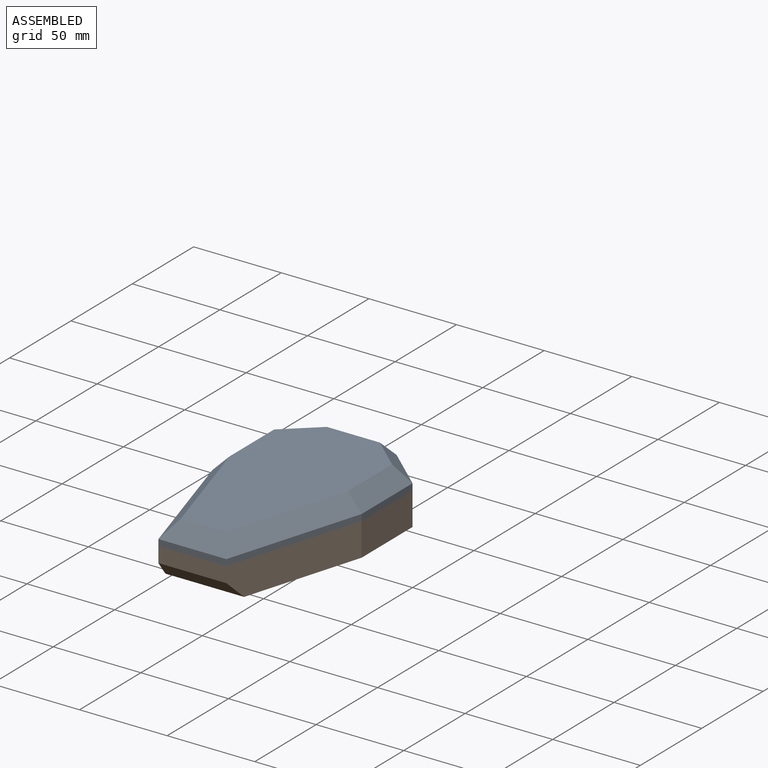
[diagram: assembled view]
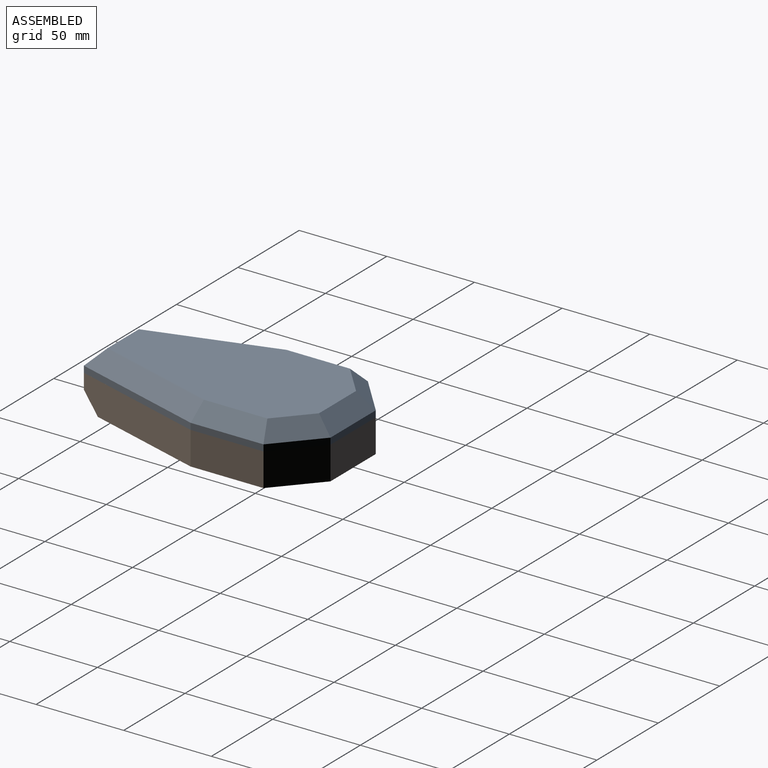
[diagram: assembled view, second angle]
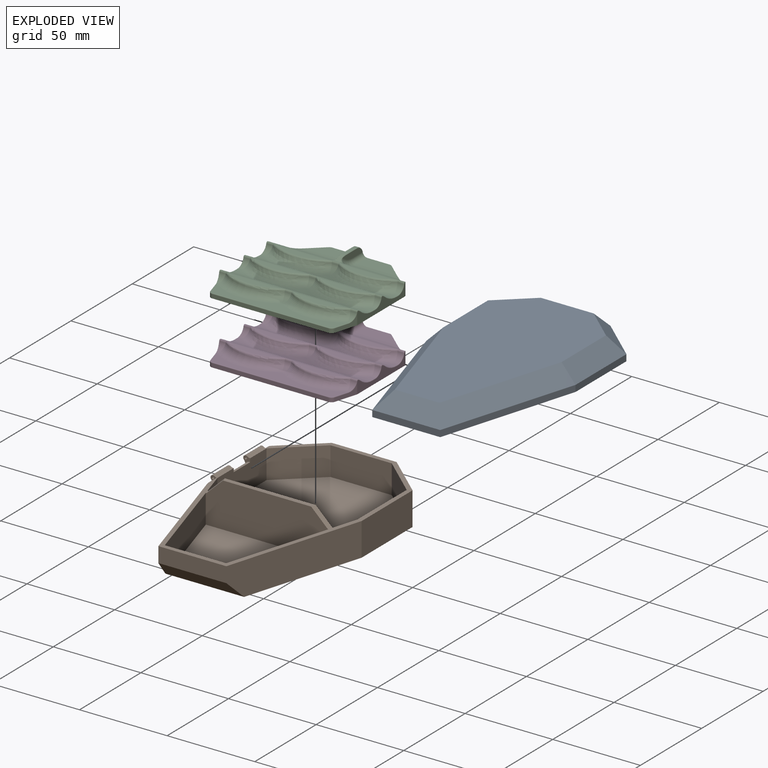
[diagram: exploded view]
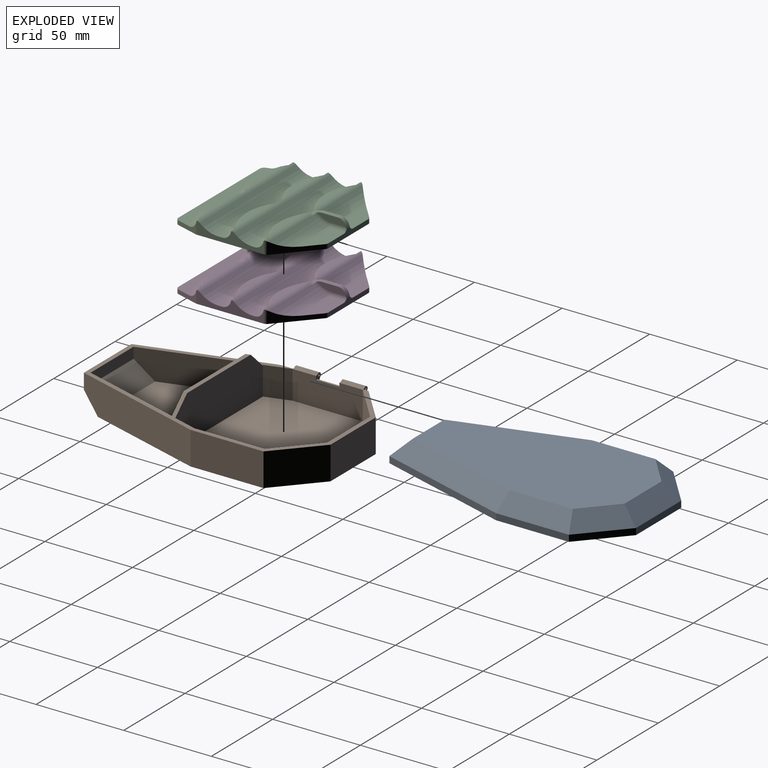
[diagram: exploded view, second angle]
ASSEMBLY  parts=4 mates=3
PART A: 45 faces, bbox 89.1x142.7x17.2 mm
  f0: plane 0.12x0mm, normal (0,1,0), area 0mm2, adj f8,f42
  f1: plane 0.12x0mm, normal (0,-1,0), area 0mm2, adj f8,f42
  f2: cylinder r=1.42mm len=13.33mm, axis (0,-1,0), area 61.4mm2, adj f4,f40,f41,f42
  f3: cylinder r=0.64mm len=13.33mm, axis (0,-1,0), area 53.2mm2, adj f40,f41
  f4: cylinder r=5.08mm len=13.33mm, axis (0,1,0), area 26.1mm2, adj f2,f5,f40,f41
  f5: plane 40x1.11mm, normal (1,0,0), area 43.4mm2, adj f4,f16,f22,f27,f40,f41,f43,f44
  f6: plane 140.08x81.78mm, normal (0,0,-1), area 825.5mm2, adj f7,f9,f10,f11,f12,f13,f14,f16
  f7: plane 24.08x21.4mm, normal (-0.66,0.75,0), area 115.7mm2, adj f6,f8,f14,f35,f44
  f8: plane 41.51x0.35mm, normal (-1,0,0), area 12.9mm2, adj f0,f1,f7,f9,f37,f42,f43,f44
  f9: plane 79.74x25.73mm, normal (-0.96,-0.29,0), area 289.2mm2, adj f6,f8,f10,f39,f43
  f10: plane 38.78x3.65mm, normal (0,-1,0), area 141.5mm2, adj f6,f9,f11,f38
  f11: plane 77.17x23.15mm, normal (0.96,-0.29,0), area 294.1mm2, adj f6,f10,f12,f36
  f12: plane 41.51x3.65mm, normal (1,0,0), area 151.5mm2, adj f6,f11,f13,f34
  f13: plane 24.07x21.4mm, normal (0.66,0.75,0), area 117.6mm2, adj f6,f12,f14,f32
  f14: plane 36.93x3.65mm, normal (0,1,0), area 134.8mm2, adj f6,f7,f13,f33
  f15: plane 122.3x67.3mm, normal (0,0,1), area 6472mm2, adj f32,f33,f34,f35,f36,f37,f38,f39
  f16: plane 22.64x20.14mm, normal (0.66,-0.75,0), area 33.4mm2, adj f5,f6,f17,f25,f44
  f17: plane 35x1.11mm, normal (0,-1,0), area 38.9mm2, adj f6,f16,f18,f24
  f18: plane 22.5x20mm, normal (-0.66,-0.75,0), area 33.4mm2, adj f6,f17,f19,f26
  f19: plane 40x1.11mm, normal (-1,0,0), area 44.4mm2, adj f6,f18,f20,f28
  f20: plane 75x22.5mm, normal (-0.96,0.29,0), area 86.9mm2, adj f6,f19,f21,f30
  f21: plane 35x1.11mm, normal (0,1,0), area 38.9mm2, adj f6,f20,f22,f31
  f22: plane 75.35x22.85mm, normal (0.96,0.29,0), area 86.9mm2, adj f5,f6,f21,f29,f43
  f23: plane 117.22x62.22mm, normal (0,0,-1), area 5673.4mm2, adj f24,f25,f26,f27,f28,f29,f30,f31
  f24: plane 35x8.89mm, normal (0,-0.71,-0.71), area 397.5mm2, adj f17,f23,f25,f26
  f25: plane 25.88x23.99mm, normal (0.47,-0.53,-0.71), area 332.1mm2, adj f16,f23,f24,f27
  f26: plane 25.88x23.99mm, normal (-0.47,-0.53,-0.71), area 332.1mm2, adj f18,f23,f24,f28
  f27: plane 40x8.89mm, normal (0.71,0,-0.71), area 469.6mm2, adj f5,f23,f25,f29
  f28: plane 40x8.89mm, normal (-0.71,0,-0.71), area 469.6mm2, adj f19,f23,f26,f30
  f29: plane 76.3x29.11mm, normal (0.68,0.2,-0.71), area 934.7mm2, adj f22,f23,f27,f31
  f30: plane 76.3x29.11mm, normal (-0.68,0.2,-0.71), area 934.7mm2, adj f20,f23,f28,f31
  f31: plane 35x8.89mm, normal (0,0.71,-0.71), area 356.9mm2, adj f21,f23,f29,f30
  f32: plane 27.45x25.39mm, normal (0.47,0.53,0.71), area 358.6mm2, adj f13,f15,f33,f34
  f33: plane 36.93x8.89mm, normal (0,0.71,0.71), area 421.8mm2, adj f14,f15,f32,f35
  f34: plane 41.51x8.89mm, normal (0.71,0,0.71), area 488.6mm2, adj f12,f15,f32,f36
  f35: plane 27.45x25.39mm, normal (-0.47,0.53,0.71), area 358.6mm2, adj f7,f15,f33,f37
  f36: plane 78.47x29.76mm, normal (0.68,-0.2,0.71), area 963.1mm2, adj f11,f15,f34,f38
  f37: plane 41.51x8.89mm, normal (-0.71,0,0.71), area 488.6mm2, adj f8,f15,f35,f39
  f38: plane 38.78x8.89mm, normal (0,-0.71,0.71), area 404.4mm2, adj f10,f15,f36,f39
  f39: plane 78.47x29.76mm, normal (-0.68,-0.2,0.71), area 963.1mm2, adj f9,f15,f37,f38
  f40: plane 5.49x4.09mm, normal (0,1,0), area 7.4mm2, adj f2,f3,f4,f5,f42,f44
  f41: plane 5.48x4.09mm, normal (0,-1,0), area 7.4mm2, adj f2,f3,f4,f5,f42,f43
  f42: cylinder r=5.08mm len=13.33mm, axis (0,-1,0), area 45.6mm2, adj f0,f1,f2,f8,f40,f41
  f43: bspline ~27.18x3.3mm, area 92mm2, adj f5,f6,f8,f9,f22,f41
  f44: bspline ~19.15x3.3mm, area 72.6mm2, adj f5,f6,f7,f8,f16,f40
PART B: 49 faces, bbox 86.5x140.1x27.9 mm
  f0: plane 58.42x17.53mm, normal (-0.96,0.29,0), area 943.3mm2, adj f22,f25,f31,f45,f47
  f1: plane 16.35x14.04mm, normal (0.96,0.29,0), area 239.7mm2, adj f8,f24,f31,f46
  f2: plane 5.48x3.85mm, normal (0,-1,0), area 6.5mm2, adj f3,f4,f5,f29,f32,f35,f36,f39
  f3: plane 41.51x14.93mm, normal (-1,0,0), area 599.5mm2, adj f2,f9,f10,f11,f26,f27,f28,f29
  f4: cylinder r=1.42mm len=13.33mm, axis (0,-1,0), area 54.6mm2, adj f2,f27,f29,f36
  f5: cylinder r=0.64mm len=13.33mm, axis (0,-1,0), area 53.2mm2, adj f2,f27
  f6: cylinder r=1.42mm len=13.33mm, axis (0,-1,0), area 54.6mm2, adj f9,f26,f28,f37
  f7: cylinder r=0.64mm len=13.33mm, axis (0,-1,0), area 53.2mm2, adj f9,f26
  f8: plane 40x16.35mm, normal (1,0,0), area 626.6mm2, adj f1,f17,f26,f27,f30,f31,f46
  f9: plane 5.48x3.85mm, normal (0,1,0), area 6.5mm2, adj f3,f6,f7,f28,f33,f34,f37,f38
  f10: plane 24.07x21.4mm, normal (-0.66,0.75,0), area 604.4mm2, adj f3,f16,f31,f33,f34,f38,f44
  f11: plane 77.17x23.15mm, normal (-0.96,-0.29,0), area 1457.3mm2, adj f3,f12,f31,f32,f35,f39,f44,f48
  f12: plane 38.78x8.73mm, normal (0,-1,0), area 338.5mm2, adj f11,f13,f31,f48
  f13: plane 77.17x23.15mm, normal (0.96,-0.29,0), area 1468mm2, adj f12,f14,f31,f44,f48
  f14: plane 41.51x18.89mm, normal (1,0,0), area 784.2mm2, adj f13,f15,f31,f44
  f15: plane 24.07x21.4mm, normal (0.66,0.75,0), area 608.5mm2, adj f14,f16,f31,f44
  f16: plane 36.93x18.89mm, normal (0,1,0), area 697.6mm2, adj f10,f15,f31,f44
  f17: plane 22.5x20mm, normal (0.66,-0.75,0), area 492.2mm2, adj f8,f18,f31,f46
  f18: plane 35x16.35mm, normal (0,-1,0), area 572.2mm2, adj f17,f19,f31,f46
  f19: plane 22.5x20mm, normal (-0.66,-0.75,0), area 492.2mm2, adj f18,f20,f31,f46
  f20: plane 40x16.35mm, normal (-1,0,0), area 654mm2, adj f19,f21,f31,f46
  f21: plane 16.35x14.04mm, normal (-0.96,0.29,0), area 239.7mm2, adj f20,f24,f31,f46
  f22: plane 35x6.19mm, normal (0,1,0), area 216.7mm2, adj f0,f23,f31,f47
  f23: plane 58.42x17.53mm, normal (0.96,0.29,0), area 943.3mm2, adj f22,f25,f31,f45,f47
  f24: plane 71.58x25.34mm, normal (0,1,0), area 1720.4mm2, adj f1,f21,f31,f41,f42,f43,f46
  f25: plane 70.05x25.34mm, normal (0,-1,0), area 1681.8mm2, adj f0,f23,f31,f41,f42,f43,f45
  f26: plane 5.48x3.96mm, normal (0,-1,0), area 9.4mm2, adj f3,f6,f7,f8,f28,f30,f31,f34
  f27: plane 5.48x3.96mm, normal (0,1,0), area 9.4mm2, adj f3,f4,f5,f8,f29,f30,f31,f35
  f28: cylinder r=5.08mm len=13.33mm, axis (0,-1,0), area 45.6mm2, adj f3,f6,f9,f26
  f29: cylinder r=5.08mm len=13.33mm, axis (0,-1,0), area 45.6mm2, adj f2,f3,f4,f27
  f30: plane 13.33x0.64mm, normal (0,0,1), area 8.5mm2, adj f8,f26,f27,f40
  f31: plane 140.08x82.62mm, normal (0,0,1), area 840.3mm2, adj f0,f1,f8,f10,f11,f12,f13,f14
  f32: cylinder r=5.08mm len=2.99mm, axis (0,-1,0), area 3.6mm2, adj f2,f3,f11,f39
  f33: cylinder r=5.08mm len=2.71mm, axis (0,1,0), area 3.9mm2, adj f3,f9,f10,f38
  f34: cylinder r=1.27mm len=16.66mm, axis (0,1,0), area 4.7mm2, adj f9,f10,f26,f31,f37,f38
  f35: cylinder r=1.27mm len=21.92mm, axis (0,1,0), area 10.2mm2, adj f2,f11,f27,f31,f36,f39
  f36: cylinder r=2.54mm len=13.33mm, axis (0,-1,0), area 22.6mm2, adj f2,f4,f27,f35
  f37: cylinder r=2.54mm len=13.33mm, axis (0,-1,0), area 22.6mm2, adj f6,f9,f26,f34
  f38: cylinder r=5.08mm len=2.27mm, axis (0,1,0), area 2.3mm2, adj f9,f10,f33,f34
  f39: cylinder r=5.08mm len=4.6mm, axis (0,-1,0), area 4.3mm2, adj f2,f11,f32,f35
  f40: cylinder r=1.91mm len=13.33mm, axis (0,-1,0), area 39.9mm2, adj f3,f26,f27,f30
  f41: plane 51.79x2.54mm, normal (0,0,1), area 129.6mm2, adj f24,f25,f42,f43
  f42: plane 10.15x8.99mm, normal (-0.68,-0.2,0.71), area 33.7mm2, adj f24,f25,f31,f41
  f43: plane 10.15x8.99mm, normal (0.68,-0.2,0.71), area 33.7mm2, adj f24,f25,f31,f41
  f44: plane 129.92x85.08mm, normal (0,0,-1), area 9191.4mm2, adj f3,f10,f11,f13,f14,f15,f16,f48
  f45: plane 70.05x48.26mm, normal (0,0,1), area 2682mm2, adj f0,f23,f25,f47
  f46: plane 80x74.04mm, normal (0,0,1), area 5414.1mm2, adj f1,f8,f17,f18,f19,f20,f21,f24
  f47: plane 41.1x10.16mm, normal (0,0.71,0.71), area 546.7mm2, adj f0,f22,f23,f45
  f48: plane 44.88x10.16mm, normal (0,-0.71,-0.71), area 601mm2, adj f11,f12,f13,f44
PART C: 152 faces, bbox 84.9x79x9.7 mm
  f0: plane 75.15x9.18mm, normal (0,0,1), area 389.9mm2, adj f27,f28,f29,f30,f31,f116,f119,f121
  f1: plane 12.35x5.29mm, normal (-0.96,-0.29,0), area 33.7mm2, adj f13,f82,f89,f125,f127
  f2: cylinder r=15.24mm len=34.12mm, axis (1,0,0), area 316.2mm2, adj f3,f14,f75,f148,f149
  f3: plane 22.81x8.29mm, normal (0,0,1), area 150.1mm2, adj f2,f14,f15,f85,f150,f151
  f4: plane 26.96x3.76mm, normal (0,0,1), area 67.3mm2, adj f53,f75
  f5: plane 26.91x3.64mm, normal (0,0,1), area 65.6mm2, adj f64,f65,f67,f74
  f6: plane 26.91x3.53mm, normal (0,0,1), area 64.1mm2, adj f72,f73
  f7: plane 3.32x0.83mm, normal (0,0,1), area 2.2mm2, adj f25,f42,f44,f94
  f8: plane 3.33x0.83mm, normal (0,0,1), area 1.6mm2, adj f25,f47,f48,f49
  f9: plane 5.69x2.1mm, normal (0,0,1), area 7.9mm2, adj f24,f32,f33,f126
  f10: plane 5.69x2.1mm, normal (0,0,1), area 7.9mm2, adj f24,f39,f40,f101
  f11: plane 3.32x0.83mm, normal (0,0,1), area 2.2mm2, adj f25,f41,f43,f113
  f12: plane 22.81x8.29mm, normal (0,0,1), area 150.1mm2, adj f15,f16,f26,f86,f141,f142
  f13: plane 78.73x73.79mm, normal (0,0,-1), area 5309.7mm2, adj f1,f14,f15,f16,f17,f18,f19,f81
  f14: plane 20.55x18.27mm, normal (-0.66,0.75,0), area 91.1mm2, adj f2,f3,f13,f75,f84,f85
  f15: plane 32.66x4.42mm, normal (0,1,0), area 88.9mm2, adj f3,f12,f13,f80,f85,f86,f141,f151
  f16: plane 20.55x18.27mm, normal (0.66,0.75,0), area 91.1mm2, adj f12,f13,f26,f75,f86,f87
  f17: plane 38.11x7.17mm, normal (1,0,0), area 142.3mm2, adj f13,f87,f88,f93,f94,f95,f97,f99
  f18: plane 12.35x5.29mm, normal (0.96,-0.29,0), area 33.7mm2, adj f13,f83,f88,f114,f116
  f19: plane 38.11x7.17mm, normal (-1,0,0), area 142.3mm2, adj f13,f84,f89,f111,f113,f115,f117,f122
  f20: plane 8.07x2.1mm, normal (0,0,1), area 8.8mm2, adj f24,f35,f36,f37
  f21: plane 26.96x3.76mm, normal (0,0,1), area 67.3mm2, adj f56,f75
  f22: plane 26.91x3.53mm, normal (0,0,1), area 64.1mm2, adj f69,f73
  f23: plane 26.91x3.64mm, normal (0,0,1), area 65.6mm2, adj f60,f61,f62,f74
  f24: cylinder r=15.24mm len=78.22mm, axis (1,0,0), area 659.6mm2, adj f9,f10,f20,f34,f38,f73,f102,f128
  f25: cylinder r=15.24mm len=78.22mm, axis (1,0,0), area 536.7mm2, adj f7,f8,f11,f45,f46,f74,f95,f115
  f26: cylinder r=15.24mm len=34.12mm, axis (1,0,0), area 316.2mm2, adj f12,f16,f75,f143,f144
  f27: cylinder r=5.08mm len=4.98mm, axis (1,0,0), area 14.4mm2, adj f0,f28,f68,f127,f129
  f28: torus R=33.65mm, axis (0,0,1), area 257.4mm2, adj f0,f27,f29,f69
  f29: cylinder r=5.08mm len=4.98mm, axis (1,0,0), area 15.3mm2, adj f0,f28,f30,f70
  f30: torus R=33.65mm, axis (0,0,1), area 257.4mm2, adj f0,f29,f31,f72
  f31: cylinder r=5.08mm len=4.98mm, axis (1,0,0), area 14.4mm2, adj f0,f30,f71,f112,f114
  f32: cylinder r=5.08mm len=4.98mm, axis (1,0,0), area 19.1mm2, adj f9,f33,f59,f124
  f33: torus R=33.65mm, axis (0,0,1), area 32.2mm2, adj f9,f32,f34,f60
  f34: bspline ~32.78x10.46mm, area 216.7mm2, adj f24,f33,f35,f61
  f35: torus R=33.65mm, axis (0,0,1), area 32.2mm2, adj f20,f34,f36,f62
  f36: cylinder r=5.08mm len=4.98mm, axis (1,0,0), area 15.3mm2, adj f20,f35,f37,f63
  f37: torus R=33.65mm, axis (0,0,1), area 32.2mm2, adj f20,f36,f38,f64
  f38: bspline ~32.78x10.46mm, area 216.7mm2, adj f24,f37,f39,f65
  f39: torus R=33.65mm, axis (0,0,1), area 32.2mm2, adj f10,f38,f40,f67
  f40: cylinder r=5.08mm len=4.98mm, axis (1,0,0), area 19.1mm2, adj f10,f39,f66,f100
  f41: cylinder r=5.08mm len=4.98mm, axis (1,0,0), area 20.1mm2, adj f11,f43,f52,f109,f111
  f42: cylinder r=5.08mm len=4.98mm, axis (1,0,0), area 20.1mm2, adj f7,f44,f50,f92,f93
  f43: torus R=33.65mm, axis (0,0,1), area 15.2mm2, adj f11,f41,f45,f54
  f44: torus R=33.65mm, axis (0,0,1), area 15.2mm2, adj f7,f42,f46,f51
  f45: bspline ~37.61x12.73mm, area 261.1mm2, adj f25,f43,f47,f56
  f46: bspline ~37.61x12.73mm, area 261.1mm2, adj f25,f44,f48,f53
  f47: torus R=33.65mm, axis (0,0,1), area 15.2mm2, adj f8,f45,f49,f58
  f48: torus R=33.65mm, axis (0,0,1), area 15.2mm2, adj f8,f46,f49,f55
  f49: cylinder r=5.08mm len=4.98mm, axis (1,0,0), area 15.3mm2, adj f8,f47,f48,f57
  f50: cylinder r=1.27mm len=3.69mm, axis (1,0,0), area 3.4mm2, adj f42,f51,f90,f91
  f51: torus R=27.43mm, axis (0,0,-1), area 3.9mm2, adj f44,f50,f53,f75,f90
  f52: cylinder r=1.27mm len=3.69mm, axis (1,0,0), area 3.4mm2, adj f41,f54,f105,f107
  f53: bspline ~32.79x6.3mm, area 48.7mm2, adj f4,f46,f51,f55,f75
  f54: torus R=27.43mm, axis (0,0,-1), area 3.9mm2, adj f43,f52,f56,f75,f105
  f55: torus R=27.43mm, axis (0,0,-1), area 3.9mm2, adj f48,f53,f57,f75
  f56: bspline ~32.79x6.3mm, area 48.7mm2, adj f21,f45,f54,f58,f75
  f57: cylinder r=1.27mm len=4.14mm, axis (1,0,0), area 4.2mm2, adj f49,f55,f58,f75
  f58: torus R=27.43mm, axis (0,0,-1), area 3.9mm2, adj f47,f56,f57,f75
  f59: cylinder r=1.27mm len=3.69mm, axis (1,0,0), area 3.4mm2, adj f32,f60,f118,f122
  f60: torus R=27.43mm, axis (0,0,-1), area 7.7mm2, adj f23,f33,f59,f61,f74,f118
  f61: bspline ~28.93x5.06mm, area 42.8mm2, adj f23,f34,f60,f62
  f62: torus R=27.43mm, axis (0,0,-1), area 7.8mm2, adj f23,f35,f61,f63,f74
  f63: cylinder r=1.27mm len=4.14mm, axis (1,0,0), area 4.2mm2, adj f36,f62,f64,f74
  f64: torus R=27.43mm, axis (0,0,-1), area 7.8mm2, adj f5,f37,f63,f65,f74
  f65: bspline ~28.93x5.06mm, area 42.8mm2, adj f5,f38,f64,f67
  f66: cylinder r=1.27mm len=3.69mm, axis (1,0,0), area 3.4mm2, adj f40,f67,f96,f99
  f67: torus R=27.43mm, axis (0,0,-1), area 7.7mm2, adj f5,f39,f65,f66,f74,f96
  f68: cylinder r=1.27mm len=3.69mm, axis (1,0,0), area 3.4mm2, adj f27,f69,f131,f132,f134
  f69: torus R=27.43mm, axis (0,0,-1), area 59.8mm2, adj f22,f28,f68,f70,f73,f131
  f70: cylinder r=1.27mm len=4.14mm, axis (1,0,0), area 4.2mm2, adj f29,f69,f72,f73
  f71: cylinder r=1.27mm len=3.69mm, axis (1,0,0), area 3.4mm2, adj f31,f72,f103,f108,f110
  f72: torus R=27.43mm, axis (0,0,-1), area 59.8mm2, adj f6,f30,f70,f71,f73,f103
  f73: cylinder r=5.08mm len=78.22mm, axis (1,0,0), area 262.4mm2, adj f6,f22,f24,f69,f70,f72,f103,f104
  f74: cylinder r=5.08mm len=78.22mm, axis (1,0,0), area 262.4mm2, adj f5,f23,f25,f60,f62,f63,f64,f67
  f75: cylinder r=5.08mm len=78.48mm, axis (1,0,0), area 246.4mm2, adj f2,f4,f14,f16,f21,f26,f51,f53
  f76: plane 16.21x3.56mm, normal (-1,0,0), area 44.7mm2, adj f138,f139,f140,f149,f150
  f77: plane 16.21x3.56mm, normal (1,0,0), area 44.7mm2, adj f135,f136,f137,f142,f143
  f78: plane 8.85x2.03mm, normal (0,0,1), area 18mm2, adj f79,f80,f136,f139
  f79: cylinder r=8.89mm len=4.47mm, axis (1,0,0), area 9.5mm2, adj f78,f135,f138,f146
  f80: cylinder r=5.08mm len=5.08mm, axis (-1,0,0), area 15.8mm2, adj f15,f78,f137,f140,f141,f151
  f81: plane 66.24x2.29mm, normal (0,-1,0), area 151.4mm2, adj f13,f82,f83,f121
  f82: cylinder r=2.54mm len=2.43mm, axis (0,0,1), area 7.4mm2, adj f1,f13,f81,f123
  f83: cylinder r=2.54mm len=2.43mm, axis (0,0,1), area 7.4mm2, adj f13,f18,f81,f119
  f84: cylinder r=2.54mm len=7.32mm, axis (0,0,1), area 15.1mm2, adj f13,f14,f19,f75,f107,f109
  f85: cylinder r=2.54mm len=2.54mm, axis (0,0,1), area 4.7mm2, adj f3,f13,f14,f15
  f86: cylinder r=2.54mm len=2.54mm, axis (0,0,1), area 4.7mm2, adj f12,f13,f15,f16
  f87: cylinder r=2.54mm len=7.32mm, axis (0,0,1), area 15.1mm2, adj f13,f16,f17,f75,f91,f92
  f88: cylinder r=2.54mm len=7.01mm, axis (0,0,1), area 4.6mm2, adj f13,f17,f18,f110,f112
  f89: cylinder r=2.54mm len=7.01mm, axis (0,0,1), area 4.6mm2, adj f1,f13,f19,f129,f132
  f90: cylinder r=0.25mm len=3.81mm, axis (-1,0,0), area 0.8mm2, adj f50,f51,f75,f91
  f91: bspline ~1.25x1.18mm, area 0.4mm2, adj f50,f75,f87,f90,f92
  f92: bspline ~0.33x0.31mm, area 0mm2, adj f42,f87,f91,f93
  f93: torus R=5.33mm, axis (1,0,0), area 2.8mm2, adj f17,f42,f92,f94
  f94: cylinder r=0.25mm len=0.83mm, axis (0,1,0), area 0.3mm2, adj f7,f17,f93,f95
  f95: torus R=15.49mm, axis (1,0,0), area 4.4mm2, adj f17,f25,f94,f97
  f96: cylinder r=0.25mm len=3.69mm, axis (-1,0,0), area 0.8mm2, adj f66,f67,f74,f98
  f97: torus R=4.83mm, axis (1,0,0), area 0.9mm2, adj f17,f74,f95,f98
  f98: sphere r=0.25mm, area 0.1mm2, adj f96,f97,f99
  f99: torus R=1.02mm, axis (1,0,0), area 0.3mm2, adj f17,f66,f98,f100
  f100: torus R=5.33mm, axis (1,0,0), area 2.8mm2, adj f17,f40,f99,f101
  f101: cylinder r=0.25mm len=2.1mm, axis (0,1,0), area 0.8mm2, adj f10,f17,f100,f102
  f102: torus R=15.49mm, axis (1,0,0), area 4.4mm2, adj f17,f24,f101,f104
  f103: cylinder r=0.25mm len=3.69mm, axis (-1,0,0), area 0.8mm2, adj f71,f72,f73,f106
  f104: torus R=4.83mm, axis (1,0,0), area 0.9mm2, adj f17,f73,f102,f106
  f105: cylinder r=0.25mm len=3.81mm, axis (-1,0,0), area 0.8mm2, adj f52,f54,f75,f107
  f106: sphere r=0.25mm, area 0.1mm2, adj f103,f104,f108
  f107: bspline ~1.18x1.18mm, area 0.4mm2, adj f52,f75,f84,f105,f109
  f108: torus R=1.02mm, axis (1,0,0), area 0.1mm2, adj f17,f71,f106,f110
  f109: bspline ~0.32x0.31mm, area 0mm2, adj f41,f84,f107,f111
  f110: bspline ~0.91x0.54mm, area 0.2mm2, adj f71,f88,f108,f112
  f111: torus R=5.33mm, axis (-1,0,0), area 2.8mm2, adj f19,f41,f109,f113
  f112: bspline ~2.54x1.12mm, area 0.5mm2, adj f31,f88,f110,f114
  f113: cylinder r=0.25mm len=0.83mm, axis (0,-1,0), area 0.3mm2, adj f11,f19,f111,f115
  f114: bspline ~5.94x3.59mm, area 2.2mm2, adj f18,f31,f112,f116
  f115: torus R=15.49mm, axis (-1,0,0), area 4.4mm2, adj f19,f25,f113,f117
  f116: cylinder r=0.25mm len=7.62mm, axis (0.29,0.96,0), area 3.1mm2, adj f0,f18,f114,f119
  f117: torus R=4.83mm, axis (-1,0,0), area 0.9mm2, adj f19,f74,f115,f120
  f118: cylinder r=0.25mm len=3.69mm, axis (-1,0,0), area 0.8mm2, adj f59,f60,f74,f120
  f119: torus R=2.29mm, axis (0,0,1), area 1.2mm2, adj f0,f83,f116,f121
  f120: sphere r=0.25mm, area 0.1mm2, adj f117,f118,f122
  f121: cylinder r=0.25mm len=66.24mm, axis (1,0,0), area 26.4mm2, adj f0,f81,f119,f123
  f122: torus R=1.02mm, axis (-1,0,0), area 0.3mm2, adj f19,f59,f120,f124
  f123: torus R=2.29mm, axis (0,0,1), area 1.2mm2, adj f0,f82,f121,f125
  f124: torus R=5.33mm, axis (-1,0,0), area 2.8mm2, adj f19,f32,f122,f126
  f125: cylinder r=0.25mm len=7.62mm, axis (0.29,-0.96,0), area 3.1mm2, adj f0,f1,f123,f127
  f126: cylinder r=0.25mm len=2.1mm, axis (0,-1,0), area 0.8mm2, adj f9,f19,f124,f128
  f127: bspline ~5.94x3.59mm, area 2.2mm2, adj f1,f27,f125,f129
  f128: torus R=15.49mm, axis (-1,0,0), area 4.4mm2, adj f19,f24,f126,f130
  f129: bspline ~2.54x1.12mm, area 0.5mm2, adj f27,f89,f127,f132
  f130: torus R=4.83mm, axis (-1,0,0), area 0.9mm2, adj f19,f73,f128,f133
  f131: cylinder r=0.25mm len=3.69mm, axis (-1,0,0), area 0.8mm2, adj f68,f69,f73,f133
  f132: bspline ~0.88x0.67mm, area 0.2mm2, adj f68,f89,f129,f134
  f133: sphere r=0.25mm, area 0.1mm2, adj f130,f131,f134
  f134: torus R=1.02mm, axis (-1,0,0), area 0.1mm2, adj f19,f68,f132,f133
  f135: torus R=8.64mm, axis (-1,0,0), area 1.6mm2, adj f77,f79,f136,f144,f145
  f136: cylinder r=0.25mm len=8.85mm, axis (0,-1,0), area 3.5mm2, adj f77,f78,f135,f137
  f137: torus R=4.83mm, axis (-1,0,0), area 2.7mm2, adj f77,f80,f136,f141
  f138: torus R=8.64mm, axis (-1,0,0), area 1.6mm2, adj f76,f79,f139,f147,f148
  f139: cylinder r=0.25mm len=8.85mm, axis (0,1,0), area 3.5mm2, adj f76,f78,f138,f140
  f140: torus R=4.83mm, axis (-1,0,0), area 2.7mm2, adj f76,f80,f139,f151
  f141: bspline ~5.31x3.18mm, area 1.7mm2, adj f12,f15,f80,f137,f142
  f142: cylinder r=2.54mm len=7.87mm, axis (0,1,0), area 31.4mm2, adj f12,f77,f141,f143
  f143: torus R=12.7mm, axis (-1,0,0), area 40.9mm2, adj f26,f77,f142,f144
  f144: bspline ~2.55x1.95mm, area 0.2mm2, adj f26,f135,f143,f145
  f145: bspline ~4.04x2.93mm, area 6.3mm2, adj f75,f135,f144,f146
  f146: cylinder r=2.54mm len=2.03mm, axis (1,0,0), area 4.1mm2, adj f75,f79,f145,f147
  f147: bspline ~3.82x3.3mm, area 6.3mm2, adj f75,f138,f146,f148
  f148: bspline ~2.6x2.05mm, area 0.2mm2, adj f2,f138,f147,f149
  f149: torus R=12.7mm, axis (-1,0,0), area 40.9mm2, adj f2,f76,f148,f150
  f150: cylinder r=2.54mm len=7.87mm, axis (0,-1,0), area 31.4mm2, adj f3,f76,f149,f151
  f151: bspline ~5.26x3.14mm, area 1.7mm2, adj f3,f15,f80,f140,f150
PART D: same geometry as C
PLACE A t=(62.29,26.95,-51.63)mm
PLACE B rot(axis=(0.71,0.21,-0.67),0deg) t=(62.29,26.95,-77.98)mm fixed
PLACE C rot(axis=(0.71,0.21,-0.67),0deg) t=(-26.35,27.38,-71.68)mm
PLACE D t=(-26.35,27.38,-80.52)mm
MATE slider C.f13 <-> B.f46  axis (0,0,-1) through (62.29,122.76,-71.68)mm
MATE revolute A.f2 <-> B.f4  axis (0,-1,0) through (19.75,115.28,-64.81)mm
MATE slider D.f13 <-> B.f46  axis (0,0,-1) through (62.29,122.76,-80.52)mm
